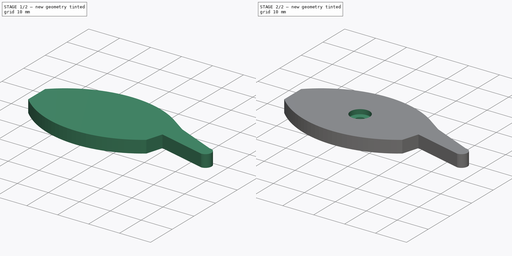
[diagram: build sequence overview — one tinted view per stage of 2, left to right]
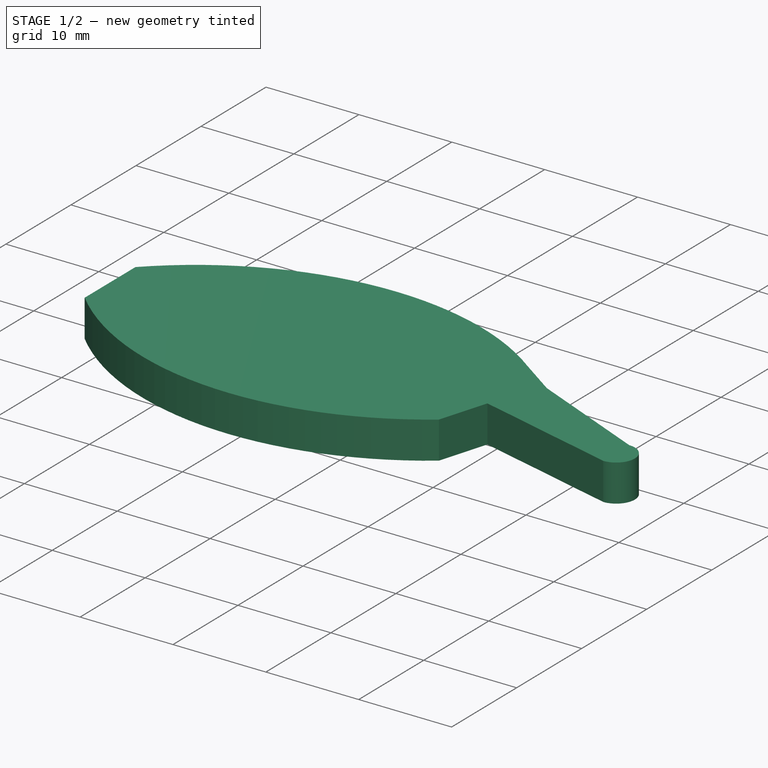
[diagram: stage 1 of 2 — iso view after this stage's code; geometry added in this stage tinted green]
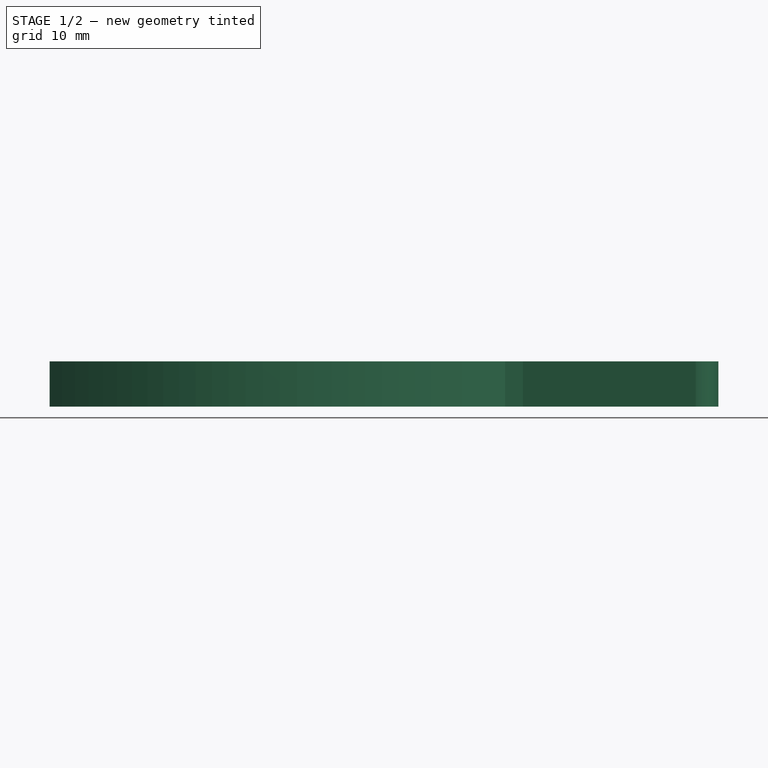
[diagram: stage 1 of 2 — front view after this stage's code; geometry added in this stage tinted green]
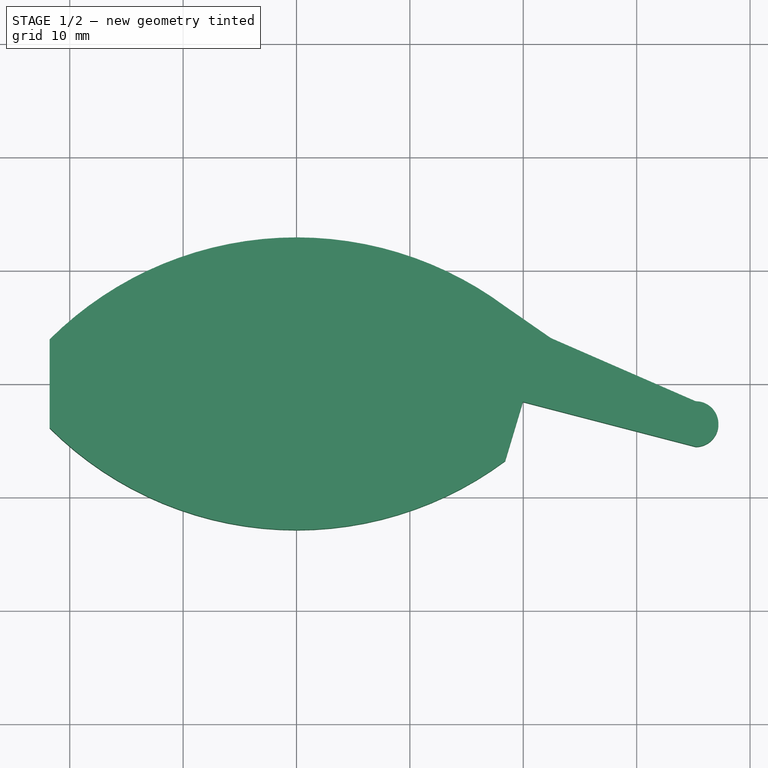
[diagram: stage 1 of 2 — top view after this stage's code; geometry added in this stage tinted green]
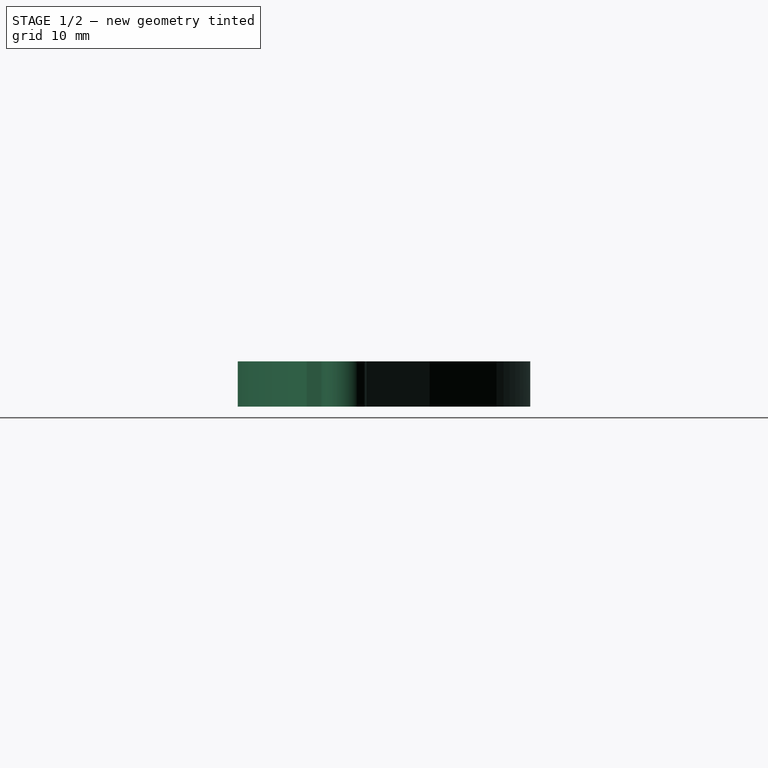
[diagram: stage 1 of 2 — right view after this stage's code; geometry added in this stage tinted green]
FCSTD DOCUMENT  (FreeCAD 0.20R29177 +426 (Git))
Label: sg90_move_stick
License: All rights reserved
LicenseURL: http://en.wikipedia.org/wiki/All_rights_reserved
objects: Sketcher::SketchObject×4, PartDesign::Pocket×3, Spreadsheet::Sheet×1, PartDesign::Pad×1, PartDesign::Body×1
note: 13 computed .brp shape members not serialized (recipe doc carries the construction recipe); baked Part::Feature solids carry a one-line shape summary decoded from their .brp

FEATURE [Sketcher::SketchObject] Sketch
  FullyConstrained = true
  MapMode = 5
  Support = -> [XY_Plane]
  expr: .Constraints.d_ylen = <<move_stick_data>>.grab_down_ylen + +<<move_stick_data>>.grab_space
  expr: .Constraints.l_xlen = <<move_stick_data>>.grab_l_xlen + <<move_stick_data>>.grab_space
  expr: .Constraints.r_xlen = <<move_stick_data>>.grab_r_xlen + <<move_stick_data>>.grab_space
  expr: .Constraints.u_ylen = <<move_stick_data>>.grab_up_ylen + <<move_stick_data>>.grab_space
  expr: Constraints[12] = <<move_stick_data>>.grab_up_xlen + <<move_stick_data>>.grab_space
  expr: Constraints[15] = <<move_stick_data>>.grab_down_xlen + <<move_stick_data>>.grab_space
  expr: Constraints[16] = <<move_stick_data>>.grab_l_bot_ylen + <<move_stick_data>>.grab_space
  expr: Constraints[20] = <<move_stick_data>>.grab_r_bot_ylen + <<move_stick_data>>.grab_space
  expr: Constraints[29] = <<move_stick_data>>.grab_r_top_ylen + <<move_stick_data>>.grab_space
  expr: Constraints[32] = <<move_stick_data>>.grab_l_top_ylen + <<move_stick_data>>.grab_space
  sketch-geometry (26):
    g0: LineSegment StartX=0 StartY=0 StartZ=0 EndX=18.4 EndY=0 EndZ=0
    g1: LineSegment StartX=0 StartY=0 StartZ=0 EndX=0 EndY=8.9 EndZ=0
    g2: LineSegment StartX=0 StartY=0 StartZ=0 EndX=0 EndY=-8.9 EndZ=0
    g3: LineSegment StartX=0 StartY=0 StartZ=0 EndX=-17.78 EndY=0 EndZ=0
    g4: ArcOfCircle CenterX=0 CenterY=6.7 CenterZ=0 NormalX=0 NormalY=0 NormalZ=1 AngleXU=0 Radius=2.2 StartAngle=0 EndAngle=3.14159
    g5: ArcOfCircle CenterX=0 CenterY=-6.7 CenterZ=0 NormalX=0 NormalY=0 NormalZ=1 AngleXU=0 Radius=2.2 StartAngle=3.14159 EndAngle=6.28319
    g6: ArcOfCircle CenterX=-15.52 CenterY=0 CenterZ=0 NormalX=0 NormalY=0 NormalZ=1 AngleXU=0 Radius=2.26 StartAngle=1.5708 EndAngle=4.71239
    g7: ArcOfCircle CenterX=16.13 CenterY=0 CenterZ=0 NormalX=0 NormalY=0 NormalZ=1 AngleXU=0 Radius=2.27 StartAngle=4.71239 EndAngle=7.85398
    g8: LineSegment StartX=2.2 StartY=6.7 StartZ=0 EndX=2.2 EndY=3.77 EndZ=0
    g9: LineSegment StartX=2.2 StartY=3.77 StartZ=0 EndX=16.13 EndY=2.27 EndZ=0
    g10: LineSegment StartX=16.13 StartY=-2.27 StartZ=0 EndX=2.2 EndY=-3.77 EndZ=0
    g11: LineSegment StartX=2.2 StartY=-3.77 StartZ=0 EndX=2.2 EndY=-6.7 EndZ=0
    g12: LineSegment StartX=-2.2 StartY=-6.7 StartZ=0 EndX=-2.2 EndY=-3.2 EndZ=0
    g13: LineSegment StartX=-2.2 StartY=-3.2 StartZ=0 EndX=-15.52 EndY=-2.26 EndZ=0
    g14: LineSegment StartX=-15.52 StartY=2.26 StartZ=0 EndX=-2.2 EndY=3.2 EndZ=0
    g15: LineSegment StartX=-2.2 StartY=3.2 StartZ=0 EndX=-2.2 EndY=6.7 EndZ=0
    g16: LineSegment StartX=2.2 StartY=3.77 StartZ=0 EndX=2.2 EndY=-3.77 EndZ=0
    g17: LineSegment StartX=-2.2 StartY=3.2 StartZ=0 EndX=-2.2 EndY=-3.2 EndZ=0
    g18: LineSegment StartX=16.13 StartY=2.27 StartZ=0 EndX=16.13 EndY=0 EndZ=0
    g19: LineSegment StartX=16.13 StartY=0 StartZ=0 EndX=16.13 EndY=-2.27 EndZ=0
    g20: LineSegment StartX=-2.2 StartY=-6.7 StartZ=0 EndX=0 EndY=-6.7 EndZ=0
    g21: LineSegment StartX=0 StartY=-6.7 StartZ=0 EndX=2.2 EndY=-6.7 EndZ=0
    g22: LineSegment StartX=-15.52 StartY=0 StartZ=0 EndX=-15.52 EndY=2.26 EndZ=0
    g23: LineSegment StartX=-15.52 StartY=0 StartZ=0 EndX=-15.52 EndY=-2.26 EndZ=0
    g24: LineSegment StartX=-2.2 StartY=6.7 StartZ=0 EndX=0 EndY=6.7 EndZ=0
    g25: LineSegment StartX=0 StartY=6.7 StartZ=0 EndX=2.2 EndY=6.7 EndZ=0
  constraints (73):
    c: Coincident(g0,g-1)
    c: PointOnObject(g0,g-1)
    c: Coincident(g1,g0)
    c: PointOnObject(g1,g-2)
    c: Coincident(g2,g0)
    c: PointOnObject(g2,g-2)
    c: Coincident(g3,g0)
    c: PointOnObject(g3,g-1)
    c: DistanceX(g0,g0) = 18.4  'r_xlen'
    c: DistanceX(g3,g3) = 17.78  'l_xlen'
    c: DistanceY(g1,g1) = 8.9  'u_ylen'
    c: DistanceY(g2,g2) = 8.9  'd_ylen'
    c: DistanceX(g4,g4) = 4.4
    c: PointOnObject(g1,g4)
    c: PointOnObject(g2,g5)
    c: DistanceX(g5,g5) = 4.4
    c: DistanceY(g6,g6) = 4.52
    c: PointOnObject(g3,g6)
    c: PointOnObject(g7,g0)
    c: PointOnObject(g0,g7)
    c: DistanceY(g7,g7) = 4.54
    c: Vertical(g8)
    c: Coincident(g8,g9)
    c: Coincident(g10,g11)
    c: Vertical(g12)
    c: Vertical(g15)
    c: Vertical(g11)
    c: Coincident(g16,g8)
    c: Coincident(g16,g10)
    c: DistanceY(g16,g16) = 7.54
    c: Equal(g8,g11)
    c: Equal(g15,g12)
    c: DistanceY(g17,g17) = 6.4
    c: Coincident(g12,g5)
    c: Coincident(g13,g17)
    c: Coincident(g13,g12)
    c: Coincident(g6,g13)
    c: Coincident(g6,g14)
    c: Coincident(g14,g15)
    c: Coincident(g14,g17)
    c: Coincident(g7,g9)
    c: Coincident(g7,g10)
    c: Coincident(g18,g7)
    c: Coincident(g18,g7)
    c: Coincident(g19,g7)
    c: Coincident(g19,g7)
    c: Vertical(g18)
    c: Vertical(g19)
    c: Coincident(g11,g5)
    c: Coincident(g20,g5)
    c: Coincident(g20,g5)
    c: Coincident(g21,g5)
    c: Coincident(g21,g5)
    c: Horizontal(g21)
    c: Horizontal(g20)
    c: Coincident(g22,g6)
    c: Coincident(g22,g6)
    c: Vertical(g22)
    c: Coincident(g23,g6)
    c: Coincident(g23,g6)
    c: Vertical(g23)
    c: Coincident(g4,g8)
    c: Coincident(g4,g15)
    c: Coincident(g24,g4)
    c: Coincident(g24,g4)
    c: Coincident(g25,g4)
    c: Coincident(g25,g4)
    c: Horizontal(g24)
    c: Horizontal(g25)
    c: PointOnObject(g5,g2)
    c: PointOnObject(g4,g1)
    c: PointOnObject(g6,g3)
    c: DistanceX(g3,g0) = 36.18
FEATURE [Spreadsheet::Sheet] Spreadsheet  label="move_stick_data"
  cells = A1=Name; B1=Value; A2=grab_r_top_ylen; B2(grab_r_top_ylen)==6.94mm; A3=grab_r_bot_ylen; B3(grab_r_bot_ylen)==3.94mm; A4=grab_r_xlen; B4(grab_r_xlen)==17.8mm; A5=grab_l_top_ylen; B5(grab_l_top_ylen)==5.8mm; A6=grab_l_bot_ylen; B6(grab_l_bot_ylen)==3.92mm; A7=grab_l_xlen; B7(grab_l_xlen)==34.36mm / 2; A8=grab_up_ylen; B8(grab_up_ylen)==16.6mm / 2; A9=grab_up_xlen; B9(grab_up_xlen)==3.8mm; A10=grab_down_ylen; B10(grab_down_ylen)==16.6mm / 2; A11=grab_down_xlen; B11(grab_down_xlen)==3.8mm; A12=grab_space; B12(grab_space)==0.6mm; A13=grab_wall_thick; B13(grab_wall_thick)==4mm; A14=grab_flick_len; B14(grab_flick_len)==15mm; A15=grab_thick; B15(grab_thick)==1.5mm; A16=grab_hold_thick; B16(grab_hold_thick)==4mm; A17=grab_screw_dia; B17(grab_screw_dia)==5mm; A18=grab_screw_hold_thick; B18(grab_screw_hold_thick)==1mm; A19=grab_screw_thin_dia; B19(grab_screw_thin_dia)==2mm
FEATURE [Sketcher::SketchObject] Sketch001
  FullyConstrained = false
  MapMode = 5
  Support = -> [XY_Plane]
  expr: Constraints[21] = <<Sketch>>.Constraints.l_xlen + <<move_stick_data>>.grab_wall_thick
  expr: Constraints[22] = <<Sketch>>.Constraints.r_xlen
  expr: Constraints[27] = <<Sketch>>.Constraints.u_ylen + <<move_stick_data>>.grab_wall_thick
  sketch-geometry (17):
    g0: LineSegment StartX=-21.78 StartY=0 StartZ=0 EndX=-21.78 EndY=3.90301 EndZ=0
    g1: LineSegment StartX=-21.78 StartY=0 StartZ=0 EndX=-21.78 EndY=-3.90301 EndZ=0
    g2: ArcOfCircle CenterX=0 CenterY=-17.9611 CenterZ=0 NormalX=0 NormalY=0 NormalZ=1 AngleXU=0 Radius=30.8611 StartAngle=0.932013 EndAngle=2.35427
    g3: ArcOfCircle CenterX=0 CenterY=17.9611 CenterZ=0 NormalX=0 NormalY=0 NormalZ=1 AngleXU=0 Radius=30.8611 StartAngle=3.92892 EndAngle=5.35117
    g4: LineSegment StartX=0 StartY=0 StartZ=0 EndX=0 EndY=-17.9611 EndZ=0
    g5: LineSegment StartX=0 StartY=0 StartZ=0 EndX=0 EndY=17.9611 EndZ=0
    g6: LineSegment StartX=18.4 StartY=6.81485 StartZ=0 EndX=18.4 EndY=0 EndZ=0
    g7: LineSegment StartX=18.4 StartY=0 StartZ=0 EndX=18.4 EndY=-6.81485 EndZ=0
    g8: ArcOfCircle CenterX=35.2113 CenterY=-3.55689 CenterZ=0 NormalX=0 NormalY=0 NormalZ=1 AngleXU=0 Radius=2 StartAngle=4.71239 EndAngle=7.85398
    g9: LineSegment StartX=35.2113 StartY=-1.55689 StartZ=0 EndX=35.2113 EndY=-5.55689 EndZ=0
    g10: GeomPoint X=0 Y=12.9 Z=0
    g11: GeomPoint X=0 Y=-12.9 Z=0
    g12: LineSegment StartX=18.4 StartY=0 StartZ=0 EndX=37.168 EndY=-3.97088 EndZ=0
    g13: LineSegment StartX=18.4 StartY=6.81485 StartZ=0 EndX=22.4307 EndY=4.01918 EndZ=0
    g14: LineSegment StartX=35.2113 StartY=-1.55689 StartZ=0 EndX=22.4307 EndY=4.01918 EndZ=0
    g15: LineSegment StartX=18.4 StartY=-6.81485 StartZ=0 EndX=19.9654 EndY=-1.59601 EndZ=0
    g16: LineSegment StartX=35.2113 StartY=-5.55689 StartZ=0 EndX=19.9654 EndY=-1.59601 EndZ=0
  constraints (42):
    c: PointOnObject(g0,g-1)
    c: Vertical(g0)
    c: Coincident(g0,g1)
    c: Vertical(g1)
    c: PointOnObject(g2,g-2)
    c: Coincident(g2,g0)
    c: PointOnObject(g3,g-2)
    c: Coincident(g3,g1)
    c: Equal(g0,g1)
    c: Coincident(g4,g-1)
    c: Coincident(g4,g2)
    c: Coincident(g5,g4)
    c: Coincident(g5,g3)
    c: Equal(g5,g4)
    c: PointOnObject(g6,g-1)
    c: Vertical(g6)
    c: Coincident(g7,g6)
    c: Coincident(g7,g3)
    c: Vertical(g7)
    c: Vertical(g9)
    c: PointOnObject(g8,g9)
    c: DistanceX(g0,g4) = 21.78
    c: DistanceX(g4,g6) = 18.4
    c: PointOnObject(g10,g2)
    c: PointOnObject(g11,g3)
    c: PointOnObject(g11,g4)
    c: PointOnObject(g10,g5)
    c: DistanceY(g4,g10) = 12.9
    c: Coincident(g12,g6)
    c: Coincident(g8,g9)
    c: PointOnObject(g8,g12)
    c: DistanceX(g4,g12) = 37.168
    c: DistanceY(g8,g8) = 4
    c: Coincident(g14,g8)
    c: Coincident(g14,g13)
    c: Coincident(g6,g13)
    c: Coincident(g2,g13)
    c: Coincident(g8,g9)
    c: Coincident(g15,g3)
    c: Coincident(g16,g8)
    c: Coincident(g16,g15)
    c: PointOnObject(g12,g8)
FEATURE [PartDesign::Pad] Pad
  Direction = (0,0,1)
  Length = 4
  Length2 = 10
  Profile = -> Sketch001
  ReferenceAxis = -> Sketch001 [N_Axis]
  Type = 0
  expr: Length = <<move_stick_data>>.grab_hold_thick
FEATURE [PartDesign::Pocket] Pocket
  BaseFeature = -> Pad
  Direction = (0,0,-1)
  Length = 1.5
  Length2 = 5
  Profile = -> Sketch
  ReferenceAxis = -> Sketch [N_Axis]
  Reversed = true
  Type = 0
  expr: Length = <<move_stick_data>>.grab_thick
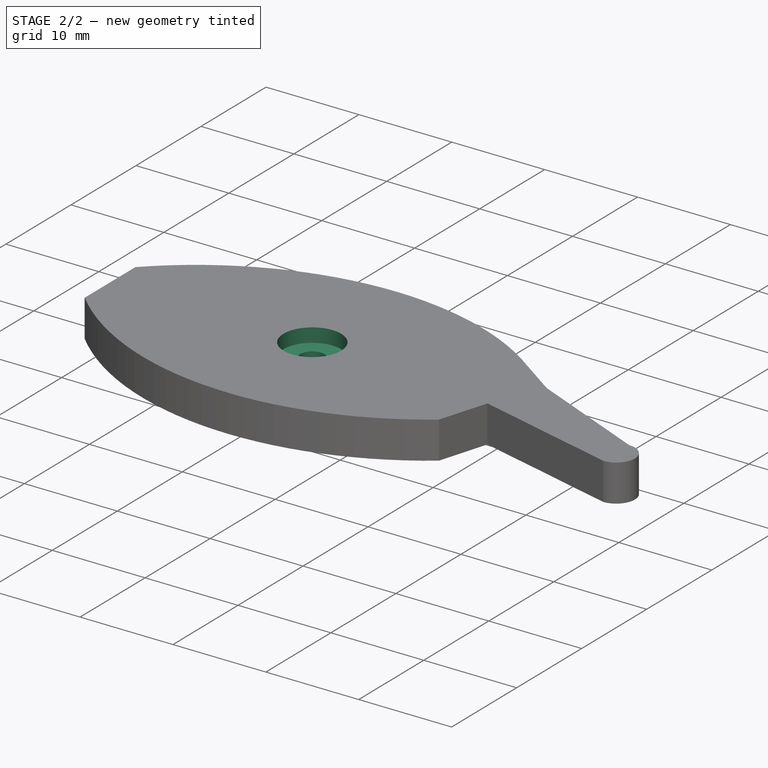
[diagram: stage 2 of 2 — iso view after this stage's code; geometry added in this stage tinted green]
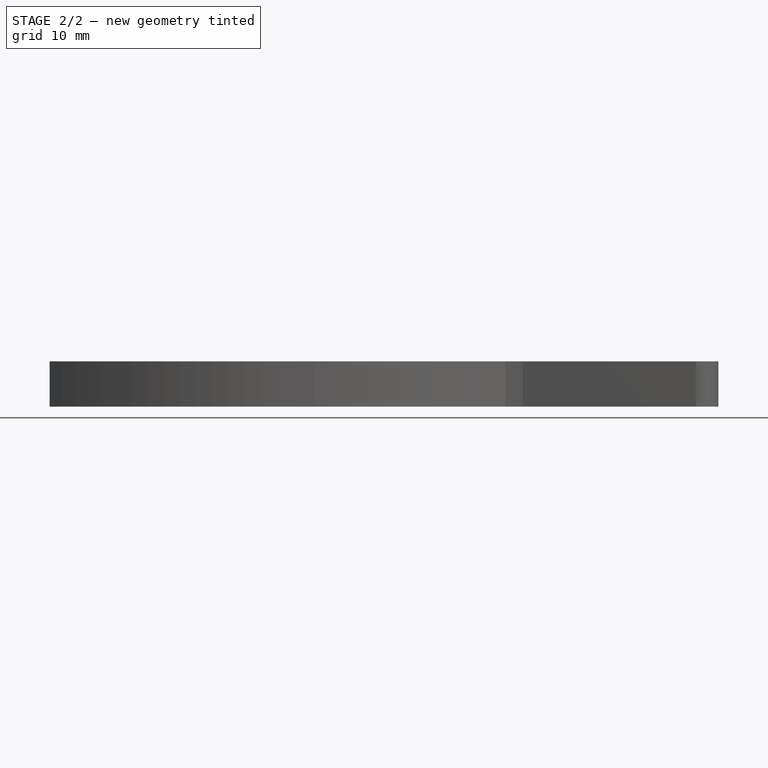
[diagram: stage 2 of 2 — front view after this stage's code; geometry added in this stage tinted green]
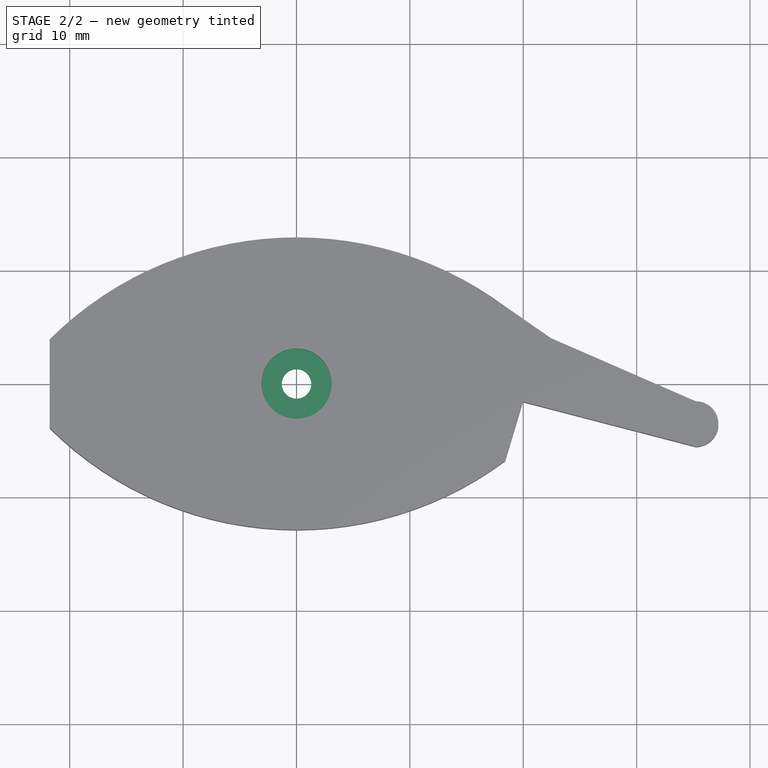
[diagram: stage 2 of 2 — top view after this stage's code; geometry added in this stage tinted green]
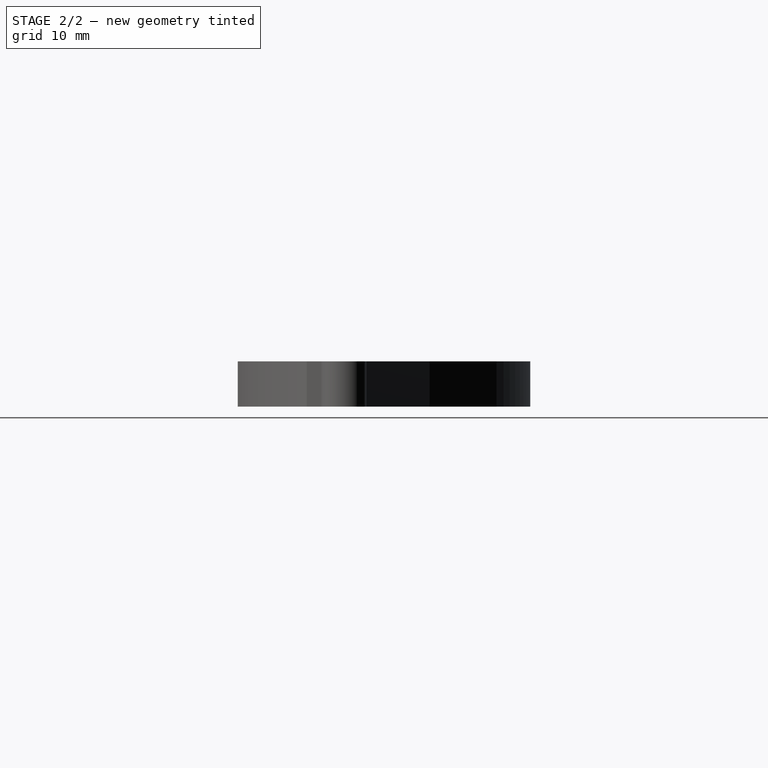
[diagram: stage 2 of 2 — right view after this stage's code; geometry added in this stage tinted green]
FEATURE [Sketcher::SketchObject] Sketch002
  AttachmentOffset = pos=(0,0,4) rot=(0,0,1;0rad)
  FullyConstrained = true
  MapMode = 5
  Placement = pos=(0,0,4) rot=(0,0,1;0rad)
  Support = -> [XY_Plane]
  expr: .AttachmentOffset.Base.z = <<Pad>>.Length
  expr: Constraints[1] = <<move_stick_data>>.grab_screw_dia + <<move_stick_data>>.grab_space * 2
  sketch-geometry (1):
    g0: Circle CenterX=0 CenterY=0 CenterZ=0 NormalX=0 NormalY=0 NormalZ=1 AngleXU=0 Radius=3.1
  constraints (2):
    c: Coincident(g0,g-1)
    c: Diameter(g0) = 6.2
FEATURE [PartDesign::Pocket] Pocket001
  BaseFeature = -> Pocket
  Direction = (0,0,-1)
  Length = 1.5
  Length2 = 5
  Profile = -> Sketch002
  ReferenceAxis = -> Sketch002 [N_Axis]
  Type = 0
  expr: Length = <<Pad>>.Length - <<Pocket>>.Length - <<move_stick_data>>.grab_screw_hold_thick
FEATURE [Sketcher::SketchObject] Sketch003
  FullyConstrained = true
  MapMode = 5
  Support = -> [XY_Plane]
  expr: Constraints[1] = <<move_stick_data>>.grab_screw_thin_dia + <<move_stick_data>>.grab_space
  sketch-geometry (1):
    g0: Circle CenterX=0 CenterY=0 CenterZ=0 NormalX=0 NormalY=0 NormalZ=1 AngleXU=0 Radius=1.3
  constraints (2):
    c: Coincident(g0,g-1)
    c: Diameter(g0) = 2.6
FEATURE [PartDesign::Pocket] Pocket002
  BaseFeature = -> Pocket001
  Direction = (0,0,-1)
  Length = 5
  Length2 = 5
  Profile = -> Sketch003
  ReferenceAxis = -> Sketch003 [N_Axis]
  Reversed = true
  Type = 1
FEATURE [PartDesign::Body] Body
  Group = -> [Sketch,Sketch001,Pad,Pocket,Sketch002,Pocket001,Sketch003,Pocket002]
  Origin = -> Origin
  Tip = -> Pocket002
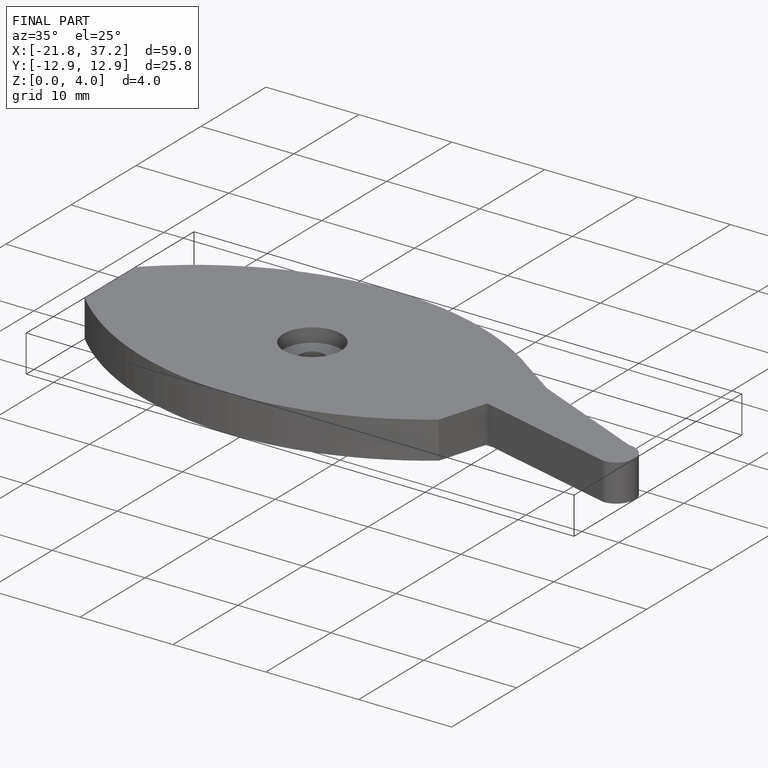
[diagram: finished part — iso view with bounding-box wireframe]
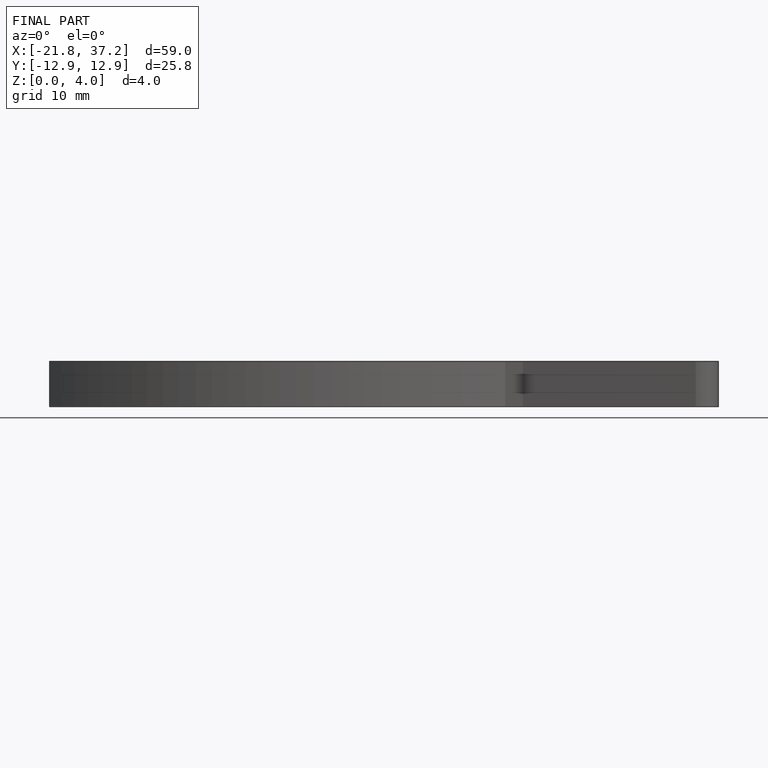
[diagram: finished part — front view with bounding-box wireframe]
